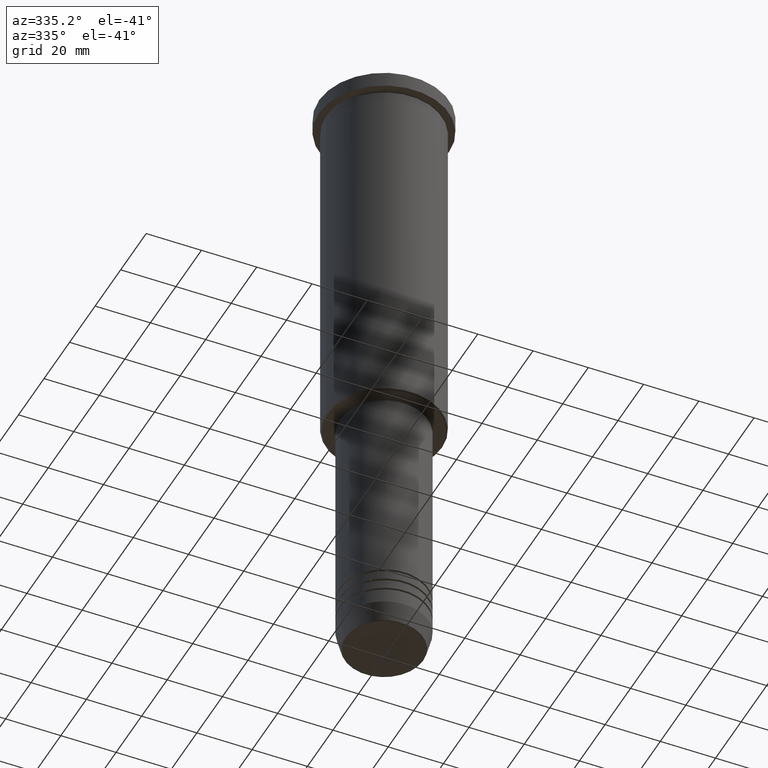
[diagram: clean part render]
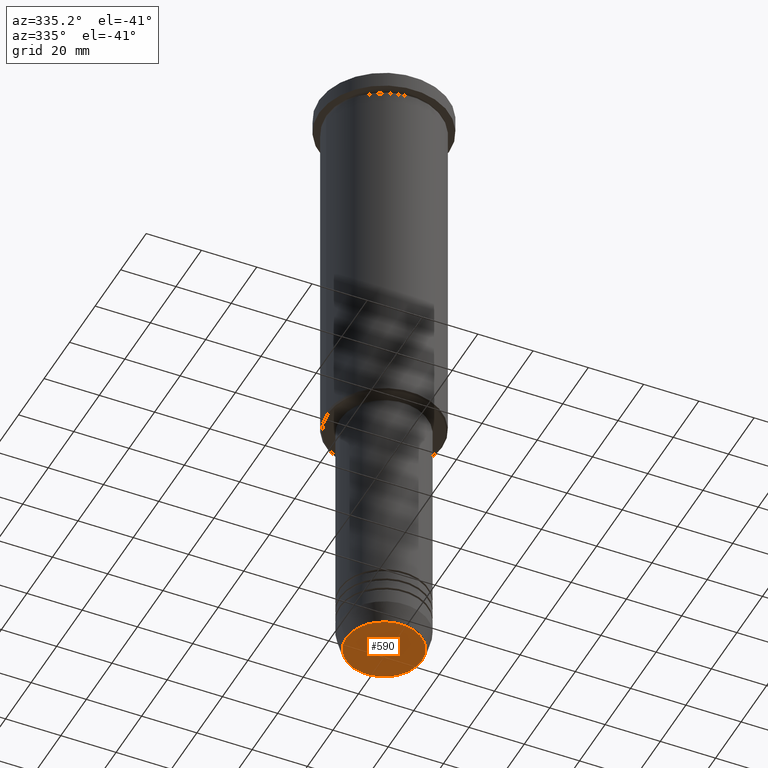
[diagram: same view with one face highlighted and labeled with its STEP entity id]
A machine part, auxiliary view. The second image highlights one B-rep face of the part: STEP entity #590.
In plain terms, the highlighted planar face has unit normal (0, -0, 1).
Its self-contained STEP definition (entity closure, byte-faithful):
#84 = VERTEX_POINT ( 'NONE', #1156 ) ;
#141 = DIRECTION ( 'NONE',  ( 0.000000000000000000, 0.000000000000000000, -1.000000000000000000 ) ) ;
#158 = CARTESIAN_POINT ( 'NONE',  ( 0.000000000000000000, 0.000000000000000000, -231.0000000000000284 ) ) ;
#244 = DIRECTION ( 'NONE',  ( 0.000000000000000000, -0.000000000000000000, 1.000000000000000000 ) ) ;
#290 = DIRECTION ( 'NONE',  ( 0.000000000000000000, 0.000000000000000000, -1.000000000000000000 ) ) ;
#340 = CARTESIAN_POINT ( 'NONE',  ( 13.74069215899265828, 0.000000000000000000, -231.0000000000000284 ) ) ;
#347 = CARTESIAN_POINT ( 'NONE',  ( 0.000000000000000000, 0.000000000000000000, -231.0000000000000284 ) ) ;
#375 = AXIS2_PLACEMENT_3D ( 'NONE', #735, #290, #1110 ) ;
#432 = FACE_OUTER_BOUND ( 'NONE', #987, .T. ) ;
#502 = CIRCLE ( 'NONE', #375, 13.74069215899265828 ) ;
#520 = DIRECTION ( 'NONE',  ( 1.000000000000000000, 0.000000000000000000, 0.000000000000000000 ) ) ;
#522 = VERTEX_POINT ( 'NONE', #340 ) ;
#560 = EDGE_CURVE ( 'NONE', #522, #84, #979, .T. ) ;
#590 = ADVANCED_FACE ( 'NONE', ( #432 ), #799, .F. ) ;
#617 = DIRECTION ( 'NONE',  ( 1.000000000000000000, 0.000000000000000000, 0.000000000000000000 ) ) ;
#687 = EDGE_CURVE ( 'NONE', #84, #522, #502, .T. ) ;
#733 = ORIENTED_EDGE ( 'NONE', *, *, #560, .T. ) ;
#735 = CARTESIAN_POINT ( 'NONE',  ( 0.000000000000000000, 0.000000000000000000, -231.0000000000000284 ) ) ;
#762 = ORIENTED_EDGE ( 'NONE', *, *, #687, .T. ) ;
#799 = PLANE ( 'NONE',  #1056 ) ;
#979 = CIRCLE ( 'NONE', #1096, 13.74069215899265828 ) ;
#987 = EDGE_LOOP ( 'NONE', ( #733, #762 ) ) ;
#1056 = AXIS2_PLACEMENT_3D ( 'NONE', #347, #244, #617 ) ;
#1096 = AXIS2_PLACEMENT_3D ( 'NONE', #158, #141, #520 ) ;
#1110 = DIRECTION ( 'NONE',  ( 1.000000000000000000, 0.000000000000000000, 0.000000000000000000 ) ) ;
#1156 = CARTESIAN_POINT ( 'NONE',  ( -13.74069215899265828, 1.712322416342415986E-15, -231.0000000000000284 ) ) ;